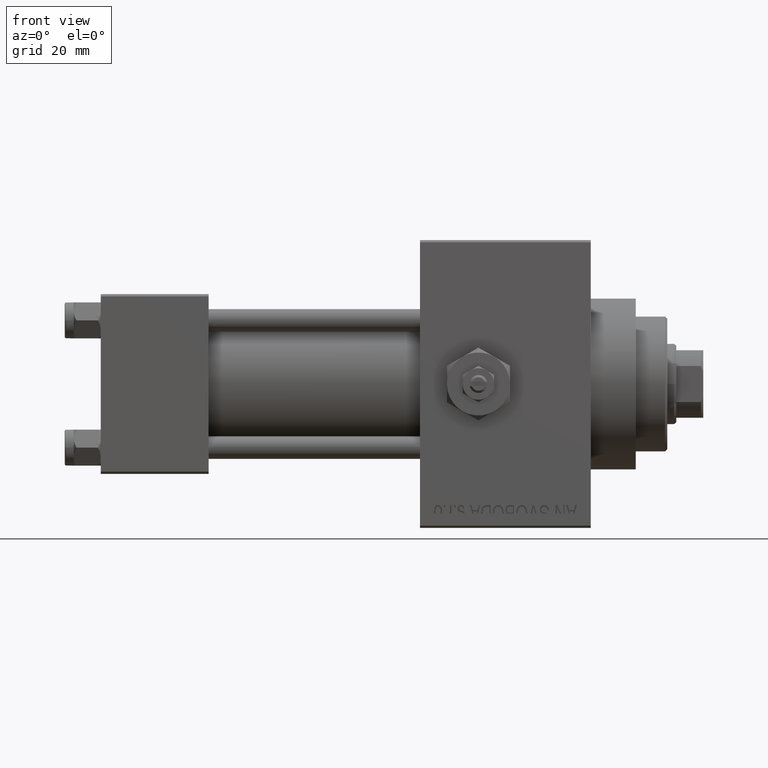
[diagram: clean part render]
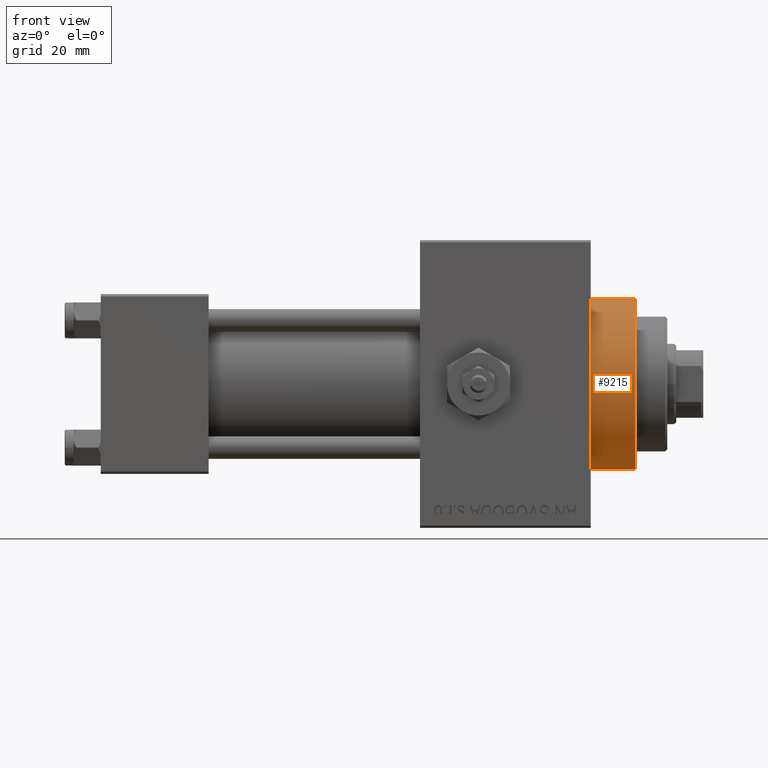
[diagram: same view with one face highlighted and labeled with its STEP entity id]
A machine part, front view. The second image highlights one B-rep face of the part: STEP entity #9215.
In plain terms, the highlighted cylindrical surface (partial cylindrical patch) has radius 19 mm, axis along (-1, -0, -0).
Its self-contained STEP definition (entity closure, byte-faithful):
#510 = ORIENTED_EDGE ( 'NONE', *, *, #17362, .F. ) ;
#2645 = EDGE_LOOP ( 'NONE', ( #510, #48165, #25847, #9115 ) ) ;
#5412 = VERTEX_POINT ( 'NONE', #19363 ) ;
#6680 = AXIS2_PLACEMENT_3D ( 'NONE', #13732, #13965, #14219 ) ;
#8245 = LINE ( 'NONE', #19088, #32767 ) ;
#8485 = DIRECTION ( 'NONE',  ( -1.000000000000000000, -0.000000000000000000, -0.000000000000000000 ) ) ;
#9115 = ORIENTED_EDGE ( 'NONE', *, *, #10213, .T. ) ;
#9215 = ADVANCED_FACE ( 'NONE', ( #47448 ), #46960, .T. ) ;
#10213 = EDGE_CURVE ( 'NONE', #21248, #21968, #35794, .T. ) ;
#10919 = CIRCLE ( 'NONE', #29752, 19.00000000000000000 ) ;
#13732 = CARTESIAN_POINT ( 'NONE',  ( 119.0000000000000142, 0.000000000000000000, 0.000000000000000000 ) ) ;
#13965 = DIRECTION ( 'NONE',  ( -1.000000000000000000, -0.000000000000000000, -0.000000000000000000 ) ) ;
#14219 = DIRECTION ( 'NONE',  ( 0.000000000000000000, 0.000000000000000000, 1.000000000000000000 ) ) ;
#15381 = DIRECTION ( 'NONE',  ( -1.000000000000000000, -0.000000000000000000, -0.000000000000000000 ) ) ;
#17362 = EDGE_CURVE ( 'NONE', #26065, #21968, #38497, .T. ) ;
#19088 = CARTESIAN_POINT ( 'NONE',  ( 119.0000000000000142, 0.000000000000000000, 19.00000000000000000 ) ) ;
#19363 = CARTESIAN_POINT ( 'NONE',  ( 119.0000000000000142, 0.000000000000000000, 19.00000000000000000 ) ) ;
#19680 = DIRECTION ( 'NONE',  ( 0.000000000000000000, 0.000000000000000000, -1.000000000000000000 ) ) ;
#19804 = CARTESIAN_POINT ( 'NONE',  ( 119.0000000000000142, 2.326828918379970970E-15, -19.00000000000000000 ) ) ;
#20096 = AXIS2_PLACEMENT_3D ( 'NONE', #47163, #40246, #32141 ) ;
#21248 = VERTEX_POINT ( 'NONE', #28986 ) ;
#21968 = VERTEX_POINT ( 'NONE', #24838 ) ;
#24838 = CARTESIAN_POINT ( 'NONE',  ( 109.0000000000000142, 2.326828918379970970E-15, -19.00000000000000000 ) ) ;
#25847 = ORIENTED_EDGE ( 'NONE', *, *, #35742, .T. ) ;
#26065 = VERTEX_POINT ( 'NONE', #28836 ) ;
#28836 = CARTESIAN_POINT ( 'NONE',  ( 119.0000000000000142, 2.326828918379970970E-15, -19.00000000000000000 ) ) ;
#28986 = CARTESIAN_POINT ( 'NONE',  ( 109.0000000000000142, 0.000000000000000000, 19.00000000000000000 ) ) ;
#29752 = AXIS2_PLACEMENT_3D ( 'NONE', #38867, #41834, #19680 ) ;
#32141 = DIRECTION ( 'NONE',  ( 0.000000000000000000, 0.000000000000000000, -1.000000000000000000 ) ) ;
#32767 = VECTOR ( 'NONE', #8485, 1000.000000000000000 ) ;
#35742 = EDGE_CURVE ( 'NONE', #5412, #21248, #8245, .T. ) ;
#35794 = CIRCLE ( 'NONE', #20096, 19.00000000000000000 ) ;
#38497 = LINE ( 'NONE', #19804, #41502 ) ;
#38867 = CARTESIAN_POINT ( 'NONE',  ( 119.0000000000000142, 0.000000000000000000, 0.000000000000000000 ) ) ;
#40246 = DIRECTION ( 'NONE',  ( 1.000000000000000000, 0.000000000000000000, 0.000000000000000000 ) ) ;
#41502 = VECTOR ( 'NONE', #15381, 1000.000000000000000 ) ;
#41834 = DIRECTION ( 'NONE',  ( 1.000000000000000000, 0.000000000000000000, 0.000000000000000000 ) ) ;
#42682 = EDGE_CURVE ( 'NONE', #5412, #26065, #10919, .T. ) ;
#46960 = CYLINDRICAL_SURFACE ( 'NONE', #6680, 19.00000000000000000 ) ;
#47163 = CARTESIAN_POINT ( 'NONE',  ( 109.0000000000000142, 0.000000000000000000, 0.000000000000000000 ) ) ;
#47448 = FACE_OUTER_BOUND ( 'NONE', #2645, .T. ) ;
#48165 = ORIENTED_EDGE ( 'NONE', *, *, #42682, .F. ) ;